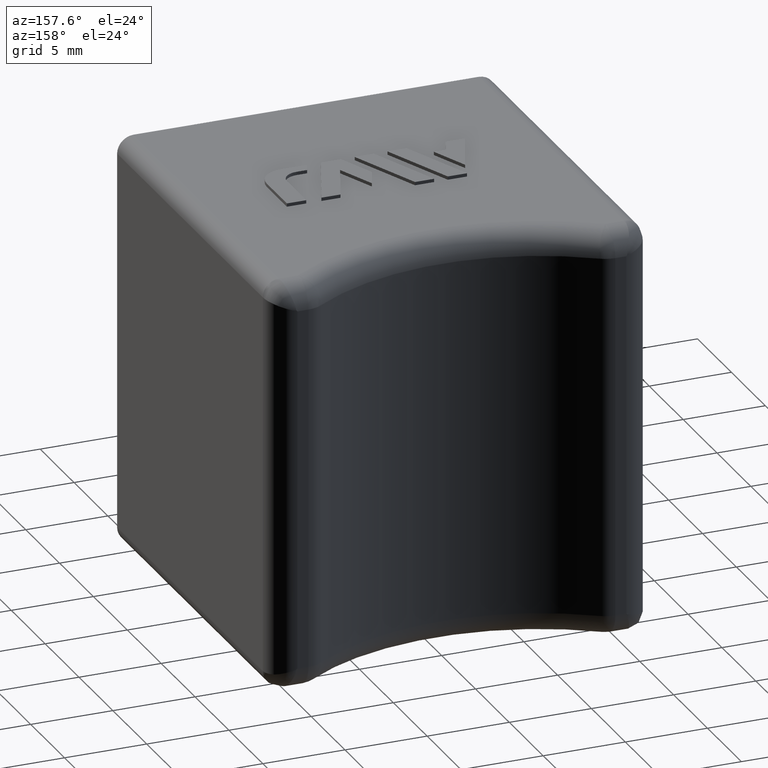
[diagram: clean part render]
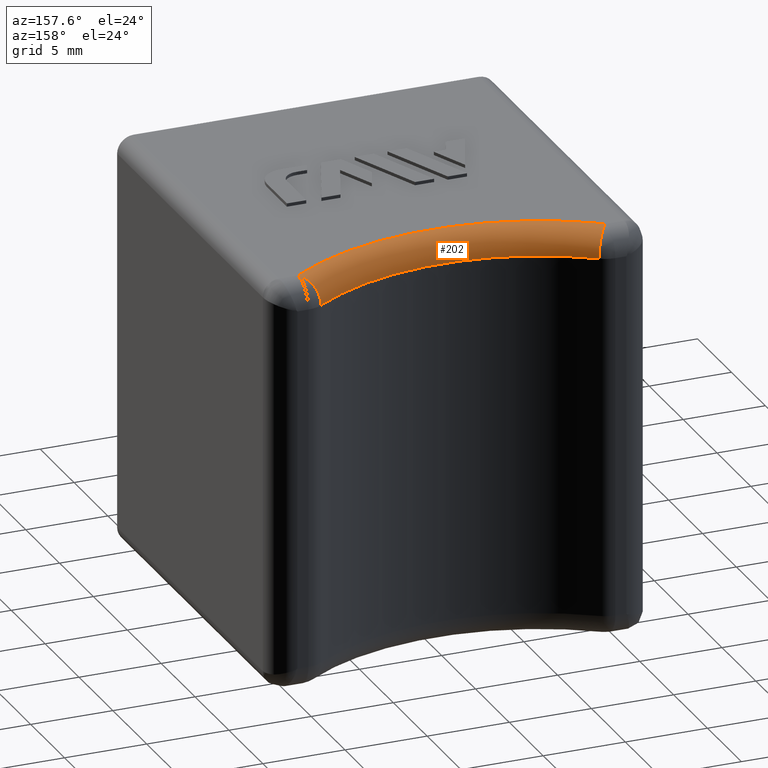
[diagram: same view with one face highlighted and labeled with its STEP entity id]
A machine part, auxiliary view. The second image highlights one B-rep face of the part: STEP entity #202.
In plain terms, the highlighted toroidal blend (fillet) surface has major radius 16.04 mm and minor (blend) radius 1.5 mm.
Its self-contained STEP definition (entity closure, byte-faithful):
#202 = ADVANCED_FACE( '', ( #520 ), #521, .T. );
#520 = FACE_OUTER_BOUND( '', #1274, .T. );
#521 = TOROIDAL_SURFACE( '', #1275, 16.0400000000000, 1.50000000000000 );
#1274 = EDGE_LOOP( '', ( #2496, #2497, #2498, #2499 ) );
#1275 = AXIS2_PLACEMENT_3D( '', #2500, #2501, #2502 );
#2496 = ORIENTED_EDGE( '', *, *, #3160, .T. );
#2497 = ORIENTED_EDGE( '', *, *, #3147, .F. );
#2498 = ORIENTED_EDGE( '', *, *, #3162, .F. );
#2499 = ORIENTED_EDGE( '', *, *, #2920, .F. );
#2500 = CARTESIAN_POINT( '', ( 0.000000000000000, 34.5400000000000, 11.0000000000000 ) );
#2501 = DIRECTION( '', ( 0.000000000000000, 0.000000000000000, -1.00000000000000 ) );
#2502 = DIRECTION( '', ( -1.00000000000000, 0.000000000000000, 0.000000000000000 ) );
#2920 = EDGE_CURVE( '', #3452, #3453, #3454, .T. );
#3147 = EDGE_CURVE( '', #3518, #3794, #3795, .F. );
#3160 = EDGE_CURVE( '', #3452, #3794, #3812, .F. );
#3162 = EDGE_CURVE( '', #3453, #3518, #3814, .T. );
#3452 = VERTEX_POINT( '', #4242 );
#3453 = VERTEX_POINT( '', #4243 );
#3454 = CIRCLE( '', #4244, 16.0400000000000 );
#3518 = VERTEX_POINT( '', #4334 );
#3794 = VERTEX_POINT( '', #4738 );
#3795 = CIRCLE( '', #4739, 14.5400000000000 );
#3812 = CIRCLE( '', #4762, 1.50000000000000 );
#3814 = CIRCLE( '', #4764, 1.50000000000000 );
#4242 = CARTESIAN_POINT( '', ( 9.34023554306850, 21.5000000000000, 12.5000000000000 ) );
#4243 = CARTESIAN_POINT( '', ( -9.34023554306849, 21.5000000000000, 12.5000000000000 ) );
#4244 = AXIS2_PLACEMENT_3D( '', #5002, #5003, #5004 );
#4334 = CARTESIAN_POINT( '', ( -8.46677211946483, 22.7194513715711, 11.0000000000000 ) );
#4738 = CARTESIAN_POINT( '', ( 8.46677211946483, 22.7194513715711, 11.0000000000000 ) );
#4739 = AXIS2_PLACEMENT_3D( '', #5375, #5376, #5377 );
#4762 = AXIS2_PLACEMENT_3D( '', #5402, #5403, #5404 );
#4764 = AXIS2_PLACEMENT_3D( '', #5408, #5409, #5410 );
#5002 = CARTESIAN_POINT( '', ( 0.000000000000000, 34.5400000000000, 12.5000000000000 ) );
#5003 = DIRECTION( '', ( 0.000000000000000, 0.000000000000000, -1.00000000000000 ) );
#5004 = DIRECTION( '', ( -1.00000000000000, 0.000000000000000, 0.000000000000000 ) );
#5375 = CARTESIAN_POINT( '', ( 0.000000000000000, 34.5400000000000, 11.0000000000000 ) );
#5376 = DIRECTION( '', ( 0.000000000000000, 0.000000000000000, -1.00000000000000 ) );
#5377 = DIRECTION( '', ( -1.00000000000000, 0.000000000000000, 0.000000000000000 ) );
#5402 = CARTESIAN_POINT( '', ( 9.34023554306849, 21.5000000000000, 11.0000000000000 ) );
#5403 = DIRECTION( '', ( 0.812967581047382, 0.582308949069108, -1.20693526125358E-015 ) );
#5404 = DIRECTION( '', ( -0.582308949069108, 0.812967581047382, 0.000000000000000 ) );
#5408 = CARTESIAN_POINT( '', ( -9.34023554306849, 21.5000000000000, 11.0000000000000 ) );
#5409 = DIRECTION( '', ( -0.812967581047381, 0.582308949069108, 0.000000000000000 ) );
#5410 = DIRECTION( '', ( -0.582308949069108, -0.812967581047381, 0.000000000000000 ) );